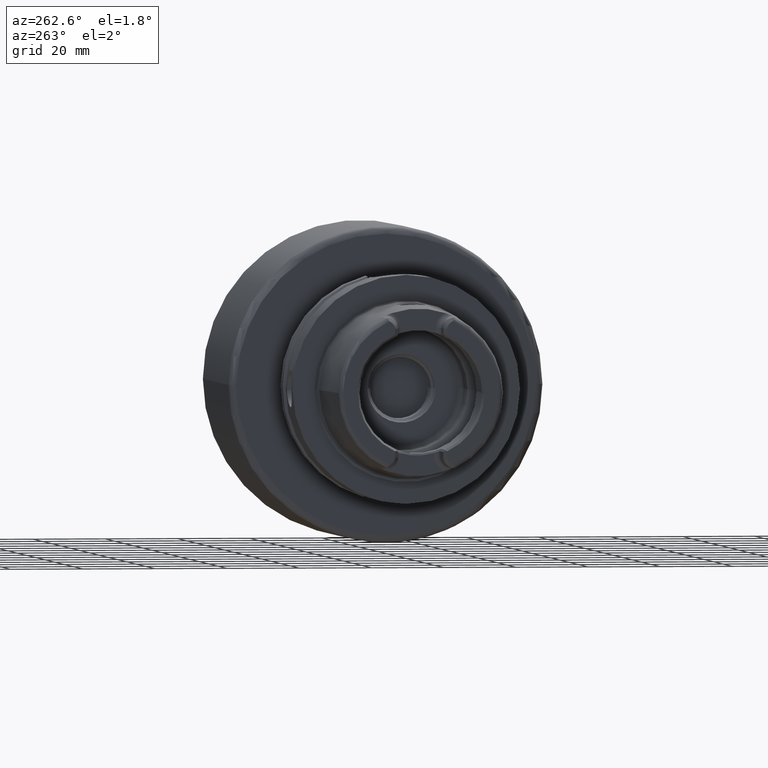
[diagram: clean part render]
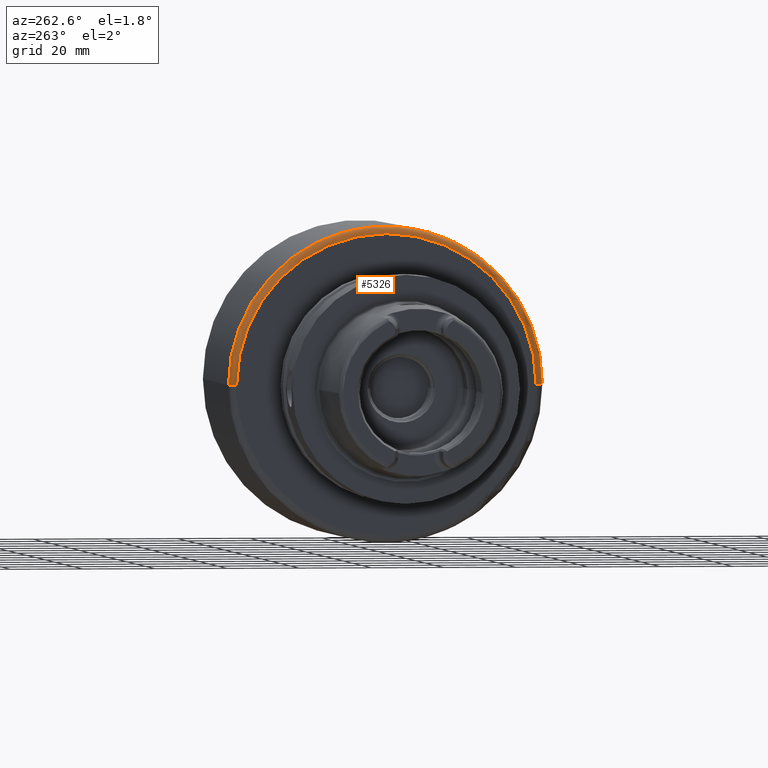
[diagram: same view with one face highlighted and labeled with its STEP entity id]
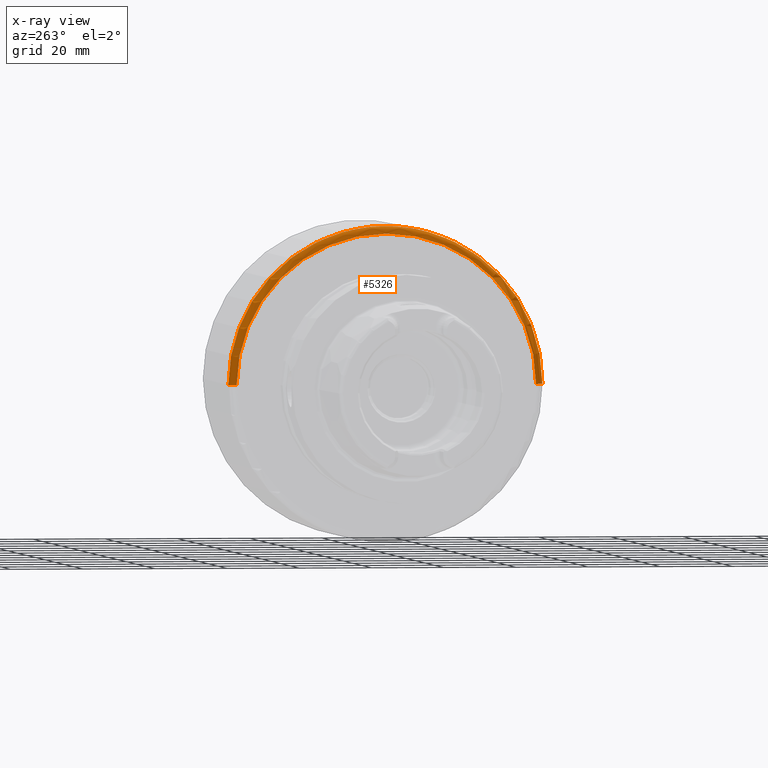
[diagram: x-ray of the same camera — body ghosted, the highlighted face saturated]
A machine part, auxiliary view. The second image highlights one B-rep face of the part: STEP entity #5326.
The next image is the same camera in x-ray: the body ghosted, the highlighted face saturated — about 0% of this face is hidden behind the body in this view.
In plain terms, the highlighted toroidal blend (fillet) surface has major radius 41.5 mm and minor (blend) radius 2 mm.
Its self-contained STEP definition (entity closure, byte-faithful):
#1496=CARTESIAN_POINT('',(4.25E1,0.E0,0.E0));
#1497=DIRECTION('',(1.E0,0.E0,0.E0));
#1498=DIRECTION('',(0.E0,1.E0,0.E0));
#1499=AXIS2_PLACEMENT_3D('',#1496,#1497,#1498);
#1521=CARTESIAN_POINT('',(4.45E1,-4.15E1,1.021904783016E-12));
#1522=DIRECTION('',(0.E0,-2.462418290106E-14,-1.E0));
#1523=DIRECTION('',(0.E0,-1.E0,2.462418290106E-14));
#1524=AXIS2_PLACEMENT_3D('',#1521,#1522,#1523);
#1544=CARTESIAN_POINT('',(4.45E1,0.E0,0.E0));
#1545=DIRECTION('',(1.E0,0.E0,0.E0));
#1546=DIRECTION('',(0.E0,1.E0,0.E0));
#1547=AXIS2_PLACEMENT_3D('',#1544,#1545,#1546);
#1554=CARTESIAN_POINT('',(4.45E1,4.15E1,-1.008540473357E-12));
#1555=DIRECTION('',(0.E0,2.430239169626E-14,1.E0));
#1556=DIRECTION('',(0.E0,1.E0,-2.430239169626E-14));
#1557=AXIS2_PLACEMENT_3D('',#1554,#1555,#1556);
#3512=CARTESIAN_POINT('',(4.45E1,-4.35E1,-1.065442715258E-14));
#3513=CARTESIAN_POINT('',(4.45E1,4.35E1,0.E0));
#3514=VERTEX_POINT('',#3512);
#3515=VERTEX_POINT('',#3513);
#3516=CARTESIAN_POINT('',(4.25E1,-4.15E1,-1.016456843292E-14));
#3517=CARTESIAN_POINT('',(4.25E1,4.15E1,0.E0));
#3518=VERTEX_POINT('',#3516);
#3519=VERTEX_POINT('',#3517);
#5315=CARTESIAN_POINT('',(4.45E1,0.E0,0.E0));
#5316=DIRECTION('',(1.E0,0.E0,0.E0));
#5317=DIRECTION('',(0.E0,9.999982837710E-1,-1.852688595293E-3));
#5318=AXIS2_PLACEMENT_3D('',#5315,#5316,#5317);
#5319=TOROIDAL_SURFACE('',#5318,4.15E1,2.E0);
#5320=ORIENTED_EDGE('',*,*,#5306,.T.);
#5321=ORIENTED_EDGE('',*,*,#5281,.T.);
#5322=ORIENTED_EDGE('',*,*,#5235,.F.);
#5323=ORIENTED_EDGE('',*,*,#5278,.F.);
#5324=EDGE_LOOP('',(#5320,#5321,#5322,#5323));
#5325=FACE_OUTER_BOUND('',#5324,.F.);
#5326=ADVANCED_FACE('',(#5325),#5319,.T.);
#1500=CIRCLE('',#1499,4.15E1);
#1525=CIRCLE('',#1524,2.E0);
#1548=CIRCLE('',#1547,4.35E1);
#1558=CIRCLE('',#1557,2.E0);
#5235=EDGE_CURVE('',#3519,#3518,#1500,.T.);
#5278=EDGE_CURVE('',#3515,#3519,#1558,.T.);
#5281=EDGE_CURVE('',#3514,#3518,#1525,.T.);
#5306=EDGE_CURVE('',#3515,#3514,#1548,.T.);